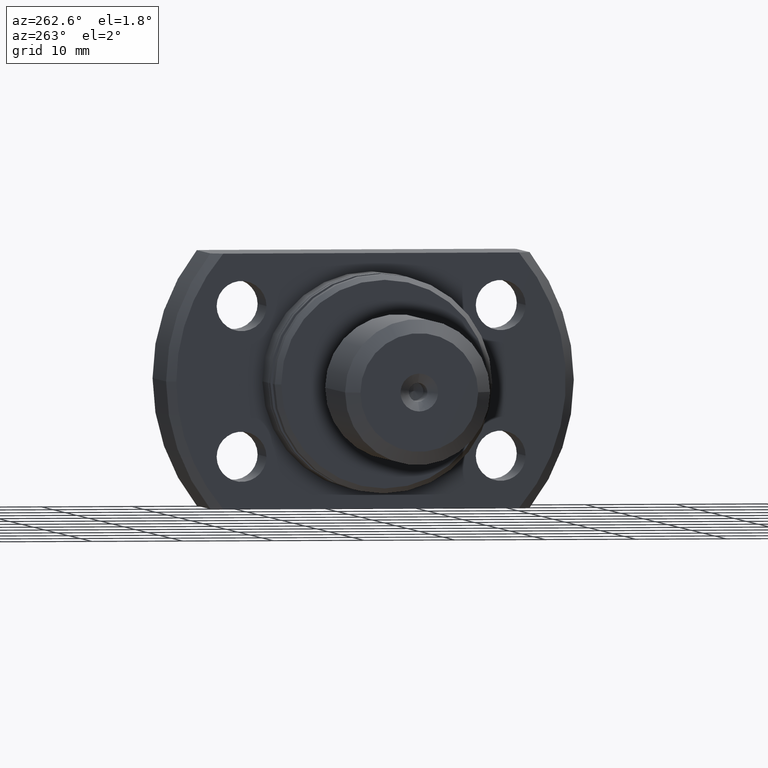
[diagram: clean part render]
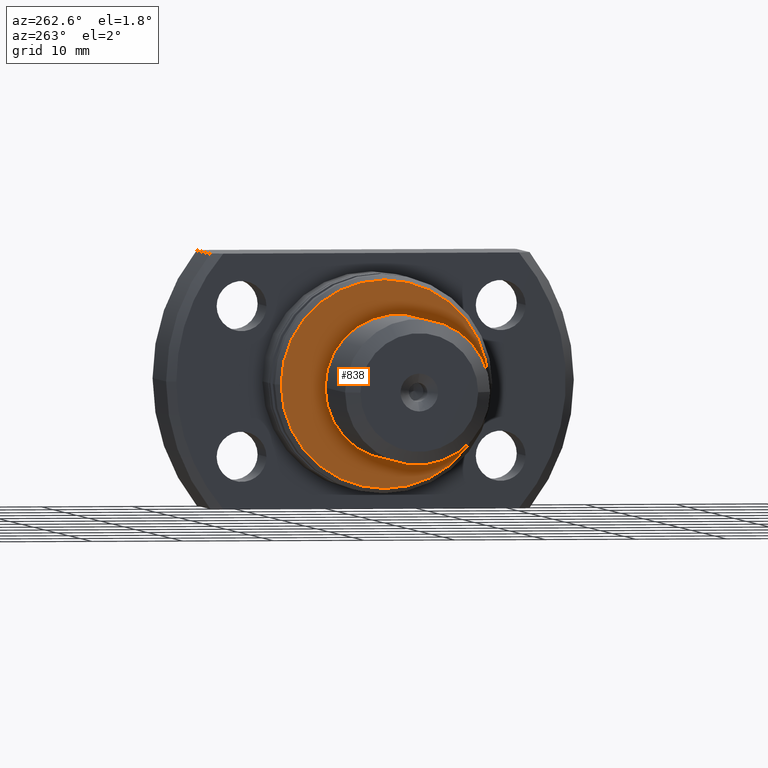
[diagram: same view with one face highlighted and labeled with its STEP entity id]
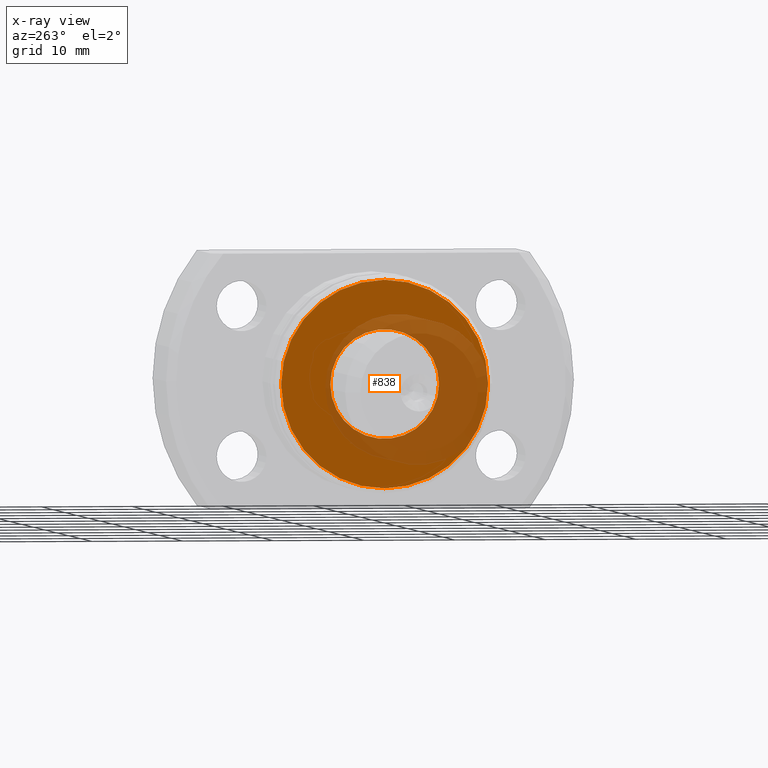
[diagram: x-ray of the same camera — body ghosted, the highlighted face saturated]
A machine part, auxiliary view. The second image highlights one B-rep face of the part: STEP entity #838.
The next image is the same camera in x-ray: the body ghosted, the highlighted face saturated — about 41% of this face is hidden behind the body in this view.
In plain terms, the highlighted planar face has unit normal (1, 0, 0).
Its self-contained STEP definition (entity closure, byte-faithful):
#117 = EDGE_CURVE ( 'NONE', #2575, #672, #2912, .T. ) ;
#140 = CARTESIAN_POINT ( 'NONE',  ( -5.709678134958873413E-18, 11.42264973081037205, 0.000000000000000000 ) ) ;
#205 = DIRECTION ( 'NONE',  ( -4.998558363877840685E-19, 1.000000000000000000, 0.000000000000000000 ) ) ;
#270 = CIRCLE ( 'NONE', #2464, 11.42264973081037205 ) ;
#362 = DIRECTION ( 'NONE',  ( -4.998558363877804092E-19, 1.000000000000000000, 0.000000000000000000 ) ) ;
#672 = VERTEX_POINT ( 'NONE', #1563 ) ;
#689 = AXIS2_PLACEMENT_3D ( 'NONE', #2102, #3092, #362 ) ;
#837 = CARTESIAN_POINT ( 'NONE',  ( 0.000000000000000000, 0.000000000000000000, 0.000000000000000000 ) ) ;
#838 = ADVANCED_FACE ( 'NONE', ( #1123, #2132 ), #1658, .F. ) ;
#1056 = DIRECTION ( 'NONE',  ( 1.000000000000000000, 4.998558363877804092E-19, -0.000000000000000000 ) ) ;
#1074 = AXIS2_PLACEMENT_3D ( 'NONE', #2495, #2017, #2260 ) ;
#1123 = FACE_BOUND ( 'NONE', #2407, .T. ) ;
#1160 = ORIENTED_EDGE ( 'NONE', *, *, #3147, .F. ) ;
#1261 = CARTESIAN_POINT ( 'NONE',  ( 6.965807324634306143E-16, -1.210536125642780259E-28, 0.000000000000000000 ) ) ;
#1408 = VERTEX_POINT ( 'NONE', #140 ) ;
#1477 = AXIS2_PLACEMENT_3D ( 'NONE', #1729, #1056, #2352 ) ;
#1489 = EDGE_CURVE ( 'NONE', #672, #2575, #1949, .T. ) ;
#1563 = CARTESIAN_POINT ( 'NONE',  ( 6.965807324634306143E-16, 6.000000000000176748, 7.347880794884335687E-16 ) ) ;
#1600 = DIRECTION ( 'NONE',  ( -4.998558363877804092E-19, 1.000000000000000000, 0.000000000000000000 ) ) ;
#1658 = PLANE ( 'NONE',  #689 ) ;
#1677 = ORIENTED_EDGE ( 'NONE', *, *, #1994, .F. ) ;
#1728 = VERTEX_POINT ( 'NONE', #2638 ) ;
#1729 = CARTESIAN_POINT ( 'NONE',  ( 6.965807324634306143E-16, -1.210536125642780259E-28, 0.000000000000000000 ) ) ;
#1836 = DIRECTION ( 'NONE',  ( 1.000000000000000000, 4.998558363877804092E-19, -0.000000000000000000 ) ) ;
#1849 = CARTESIAN_POINT ( 'NONE',  ( 6.965807324634306143E-16, -5.999999999999830358, 0.000000000000000000 ) ) ;
#1878 = ORIENTED_EDGE ( 'NONE', *, *, #117, .T. ) ;
#1938 = EDGE_LOOP ( 'NONE', ( #1160, #1677 ) ) ;
#1949 = CIRCLE ( 'NONE', #2313, 6.000000000000176748 ) ;
#1994 = EDGE_CURVE ( 'NONE', #1728, #1408, #270, .T. ) ;
#2017 = DIRECTION ( 'NONE',  ( 1.000000000000000000, 4.998558363877804092E-19, -0.000000000000000000 ) ) ;
#2102 = CARTESIAN_POINT ( 'NONE',  ( 6.965807324634245007E-16, 3.481899446371177285E-34, 0.000000000000000000 ) ) ;
#2132 = FACE_OUTER_BOUND ( 'NONE', #1938, .T. ) ;
#2260 = DIRECTION ( 'NONE',  ( -4.998558363877804092E-19, 1.000000000000000000, 0.000000000000000000 ) ) ;
#2313 = AXIS2_PLACEMENT_3D ( 'NONE', #1261, #2756, #205 ) ;
#2352 = DIRECTION ( 'NONE',  ( -4.998558363877840685E-19, 1.000000000000000000, 0.000000000000000000 ) ) ;
#2407 = EDGE_LOOP ( 'NONE', ( #1878, #3168 ) ) ;
#2464 = AXIS2_PLACEMENT_3D ( 'NONE', #837, #1836, #1600 ) ;
#2495 = CARTESIAN_POINT ( 'NONE',  ( 0.000000000000000000, 0.000000000000000000, 0.000000000000000000 ) ) ;
#2575 = VERTEX_POINT ( 'NONE', #1849 ) ;
#2638 = CARTESIAN_POINT ( 'NONE',  ( 5.709678134958873413E-18, -11.42264973081037205, 1.434223651019326615E-15 ) ) ;
#2675 = CIRCLE ( 'NONE', #1074, 11.42264973081037205 ) ;
#2756 = DIRECTION ( 'NONE',  ( 1.000000000000000000, 4.998558363877804092E-19, -0.000000000000000000 ) ) ;
#2912 = CIRCLE ( 'NONE', #1477, 6.000000000000176748 ) ;
#3092 = DIRECTION ( 'NONE',  ( 1.000000000000000000, 4.998558363877804092E-19, -0.000000000000000000 ) ) ;
#3147 = EDGE_CURVE ( 'NONE', #1408, #1728, #2675, .T. ) ;
#3168 = ORIENTED_EDGE ( 'NONE', *, *, #1489, .T. ) ;